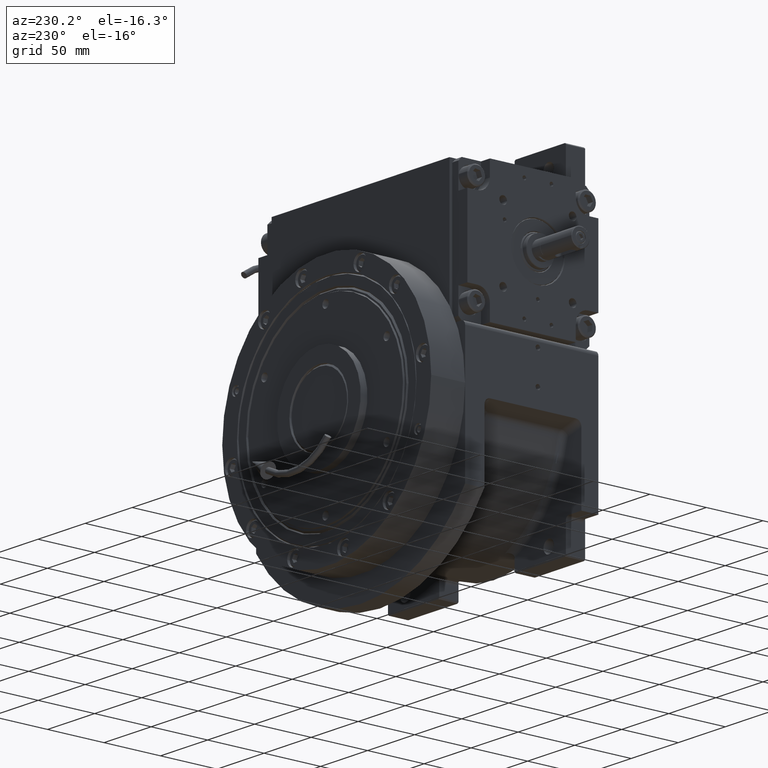
[diagram: clean part render]
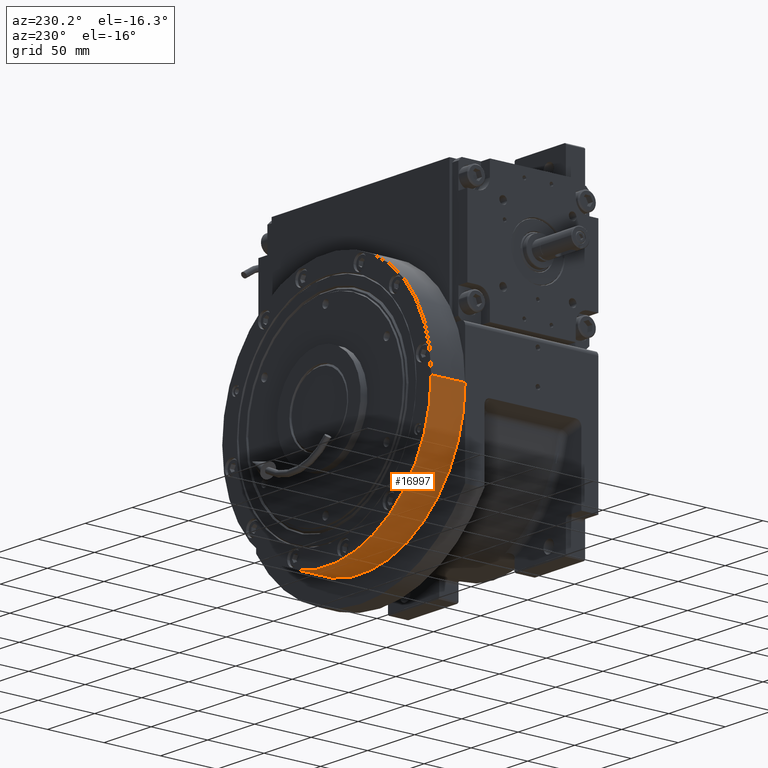
[diagram: same view with one face highlighted and labeled with its STEP entity id]
A machine part, auxiliary view. The second image highlights one B-rep face of the part: STEP entity #16997.
In plain terms, the highlighted cylindrical surface (partial cylindrical patch) has radius 111 mm, axis along (0, -1, 0).
Its self-contained STEP definition (entity closure, byte-faithful):
#945 = CARTESIAN_POINT ( 'NONE',  ( 0.000000000000000000, 0.000000000000000000, 30.00000000000000000 ) ) ;
#1795 = AXIS2_PLACEMENT_3D ( 'NONE', #945, #42595, #63916 ) ;
#3272 = ORIENTED_EDGE ( 'NONE', *, *, #44002, .F. ) ;
#8870 = VERTEX_POINT ( 'NONE', #57907 ) ;
#13048 = CARTESIAN_POINT ( 'NONE',  ( -111.0000000000000000, 1.359357947053561722E-14, 0.000000000000000000 ) ) ;
#16298 = DIRECTION ( 'NONE',  ( 0.000000000000000000, 0.000000000000000000, -1.000000000000000000 ) ) ;
#16402 = DIRECTION ( 'NONE',  ( 1.000000000000000000, 0.000000000000000000, 0.000000000000000000 ) ) ;
#16997 = ADVANCED_FACE ( 'NONE', ( #63779 ), #52785, .T. ) ;
#17346 = CARTESIAN_POINT ( 'NONE',  ( 111.0000000000000000, 0.000000000000000000, 0.000000000000000000 ) ) ;
#19504 = CARTESIAN_POINT ( 'NONE',  ( -111.0000000000000000, 4.531193156845210737E-15, 0.000000000000000000 ) ) ;
#22781 = ORIENTED_EDGE ( 'NONE', *, *, #25184, .F. ) ;
#23352 = DIRECTION ( 'NONE',  ( 0.000000000000000000, 0.000000000000000000, 1.000000000000000000 ) ) ;
#25184 = EDGE_CURVE ( 'NONE', #35475, #8870, #59973, .T. ) ;
#25916 = VECTOR ( 'NONE', #23352, 1000.000000000000000 ) ;
#26634 = CARTESIAN_POINT ( 'NONE',  ( 0.000000000000000000, 0.000000000000000000, 0.000000000000000000 ) ) ;
#27065 = CARTESIAN_POINT ( 'NONE',  ( 0.000000000000000000, 0.000000000000000000, 0.000000000000000000 ) ) ;
#27188 = VERTEX_POINT ( 'NONE', #28690 ) ;
#28525 = VECTOR ( 'NONE', #65482, 1000.000000000000000 ) ;
#28690 = CARTESIAN_POINT ( 'NONE',  ( -111.0000000000000000, 4.531193156845210737E-15, 30.00000000000000000 ) ) ;
#31424 = DIRECTION ( 'NONE',  ( 1.000000000000000000, 0.000000000000000000, 0.000000000000000000 ) ) ;
#32868 = EDGE_CURVE ( 'NONE', #35475, #61657, #51324, .T. ) ;
#35475 = VERTEX_POINT ( 'NONE', #17346 ) ;
#42595 = DIRECTION ( 'NONE',  ( 0.000000000000000000, 0.000000000000000000, 1.000000000000000000 ) ) ;
#44002 = EDGE_CURVE ( 'NONE', #8870, #27188, #61121, .T. ) ;
#44249 = ORIENTED_EDGE ( 'NONE', *, *, #55768, .T. ) ;
#45417 = AXIS2_PLACEMENT_3D ( 'NONE', #26634, #16298, #31424 ) ;
#49521 = LINE ( 'NONE', #13048, #25916 ) ;
#51324 = CIRCLE ( 'NONE', #60105, 111.0000000000000000 ) ;
#52785 = CYLINDRICAL_SURFACE ( 'NONE', #45417, 111.0000000000000000 ) ;
#53890 = DIRECTION ( 'NONE',  ( 0.000000000000000000, 0.000000000000000000, 1.000000000000000000 ) ) ;
#54827 = CARTESIAN_POINT ( 'NONE',  ( 111.0000000000000000, 0.000000000000000000, 0.000000000000000000 ) ) ;
#55768 = EDGE_CURVE ( 'NONE', #61657, #27188, #49521, .T. ) ;
#57907 = CARTESIAN_POINT ( 'NONE',  ( 111.0000000000000000, 0.000000000000000000, 30.00000000000000000 ) ) ;
#59973 = LINE ( 'NONE', #54827, #28525 ) ;
#60105 = AXIS2_PLACEMENT_3D ( 'NONE', #27065, #53890, #16402 ) ;
#61121 = CIRCLE ( 'NONE', #1795, 111.0000000000000000 ) ;
#61657 = VERTEX_POINT ( 'NONE', #19504 ) ;
#63779 = FACE_OUTER_BOUND ( 'NONE', #66291, .T. ) ;
#63916 = DIRECTION ( 'NONE',  ( 1.000000000000000000, 0.000000000000000000, 0.000000000000000000 ) ) ;
#64208 = ORIENTED_EDGE ( 'NONE', *, *, #32868, .T. ) ;
#65482 = DIRECTION ( 'NONE',  ( 0.000000000000000000, 0.000000000000000000, 1.000000000000000000 ) ) ;
#66291 = EDGE_LOOP ( 'NONE', ( #44249, #3272, #22781, #64208 ) ) ;